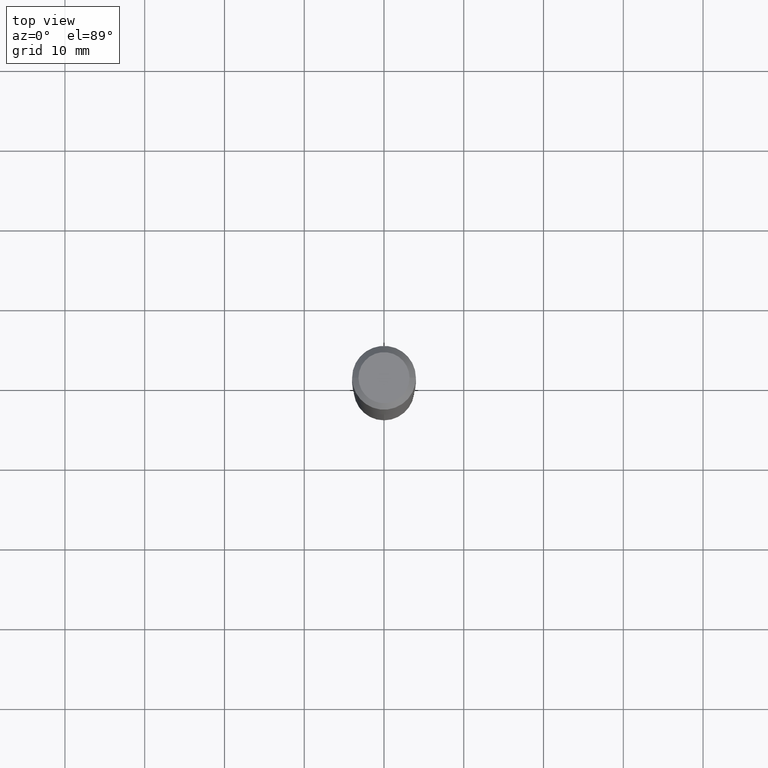
[diagram: clean part render]
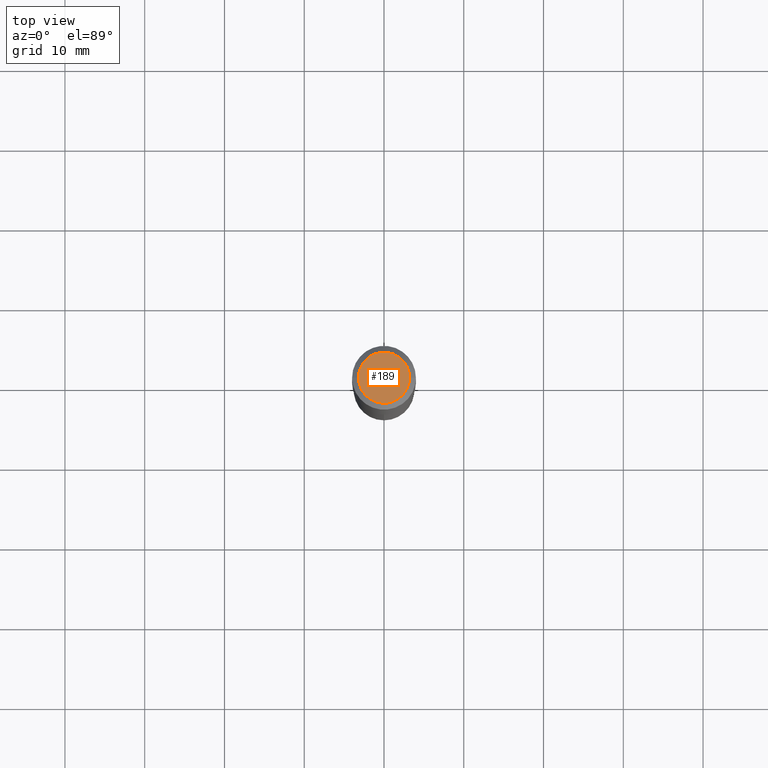
[diagram: same view with one face highlighted and labeled with its STEP entity id]
A machine part, top view. The second image highlights one B-rep face of the part: STEP entity #189.
In plain terms, the highlighted planar face has unit normal (0, -0, -1).
Its self-contained STEP definition (entity closure, byte-faithful):
#31 = AXIS2_PLACEMENT_3D ( 'NONE', #108, #450, #271 ) ;
#32 = CIRCLE ( 'NONE', #93, 0.1260000000000000009 ) ;
#39 = VERTEX_POINT ( 'NONE', #242 ) ;
#42 = FACE_OUTER_BOUND ( 'NONE', #360, .T. ) ;
#58 = DIRECTION ( 'NONE',  ( -2.445468806185136597E-29, 3.491481338843145583E-15, 1.000000000000000000 ) ) ;
#93 = AXIS2_PLACEMENT_3D ( 'NONE', #203, #284, #377 ) ;
#108 = CARTESIAN_POINT ( 'NONE',  ( -4.719860820353100843E-47, 6.738710358733633822E-33, 1.930043355456229866E-18 ) ) ;
#128 = CARTESIAN_POINT ( 'NONE',  ( -9.439721640706201686E-47, 1.347742071746726764E-32, 3.860086710912459732E-18 ) ) ;
#189 = ADVANCED_FACE ( 'NONE', ( #42 ), #200, .F. ) ;
#200 = PLANE ( 'NONE',  #31 ) ;
#203 = CARTESIAN_POINT ( 'NONE',  ( -9.439721640706201686E-47, 1.347742071746726764E-32, 3.860086710912459732E-18 ) ) ;
#205 = ORIENTED_EDGE ( 'NONE', *, *, #397, .T. ) ;
#216 = CARTESIAN_POINT ( 'NONE',  ( 0.1260000000000000009, -1.027466422270894443E-15, 3.860086710919128072E-18 ) ) ;
#242 = CARTESIAN_POINT ( 'NONE',  ( -0.1260000000000000009, 9.348441284752484904E-16, 3.860086710906114178E-18 ) ) ;
#258 = ORIENTED_EDGE ( 'NONE', *, *, #389, .T. ) ;
#271 = DIRECTION ( 'NONE',  ( -1.000000000000000000, 6.982962677686265922E-15, -4.876176775795935793E-29 ) ) ;
#276 = VERTEX_POINT ( 'NONE', #216 ) ;
#284 = DIRECTION ( 'NONE',  ( -2.445468806185136597E-29, 3.491481338843145583E-15, 1.000000000000000000 ) ) ;
#297 = CIRCLE ( 'NONE', #382, 0.1260000000000000009 ) ;
#360 = EDGE_LOOP ( 'NONE', ( #205, #258 ) ) ;
#377 = DIRECTION ( 'NONE',  ( 1.000000000000000000, -6.982962677686265922E-15, 4.876281427513067258E-29 ) ) ;
#382 = AXIS2_PLACEMENT_3D ( 'NONE', #128, #58, #469 ) ;
#389 = EDGE_CURVE ( 'NONE', #276, #39, #297, .T. ) ;
#397 = EDGE_CURVE ( 'NONE', #39, #276, #32, .T. ) ;
#450 = DIRECTION ( 'NONE',  ( 2.438088387897960049E-29, -3.491481338843145188E-15, -1.000000000000000000 ) ) ;
#469 = DIRECTION ( 'NONE',  ( 1.000000000000000000, -6.982962677686265922E-15, 4.876281427513067258E-29 ) ) ;